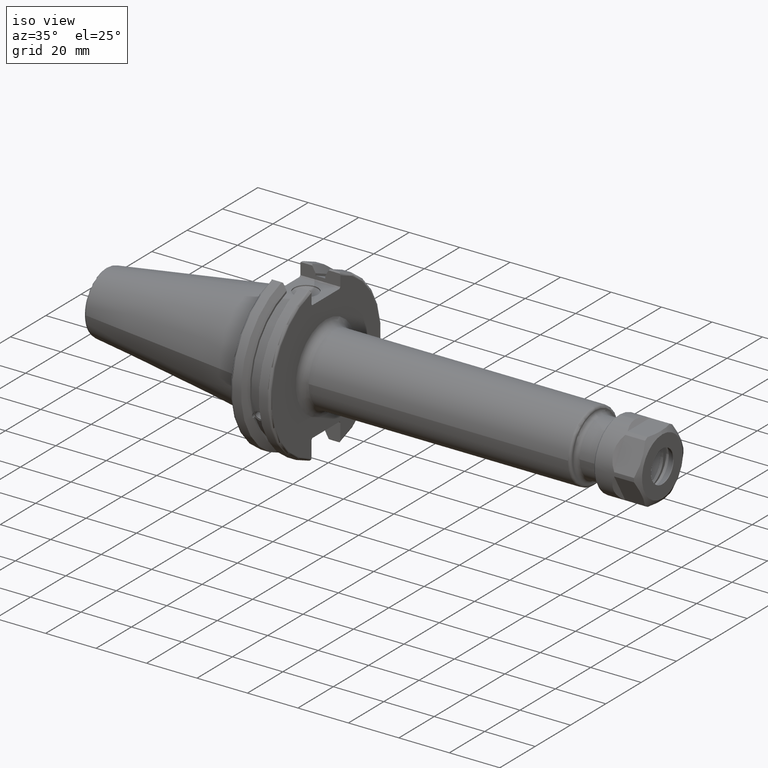
[diagram: clean part render]
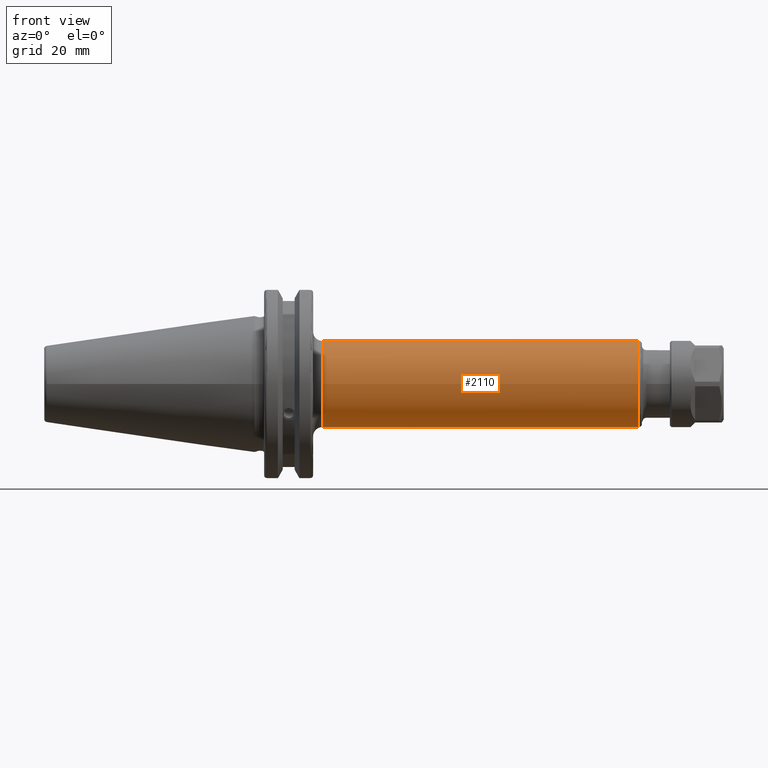
[diagram: tour spotlight — one face highlighted and labeled with its STEP entity id]
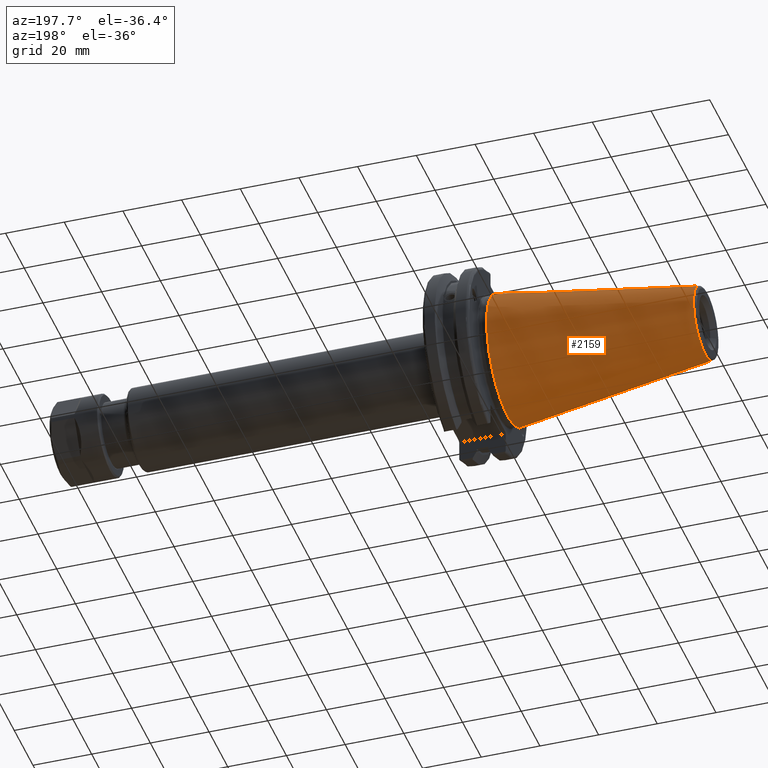
[diagram: tour spotlight — one face highlighted and labeled with its STEP entity id]
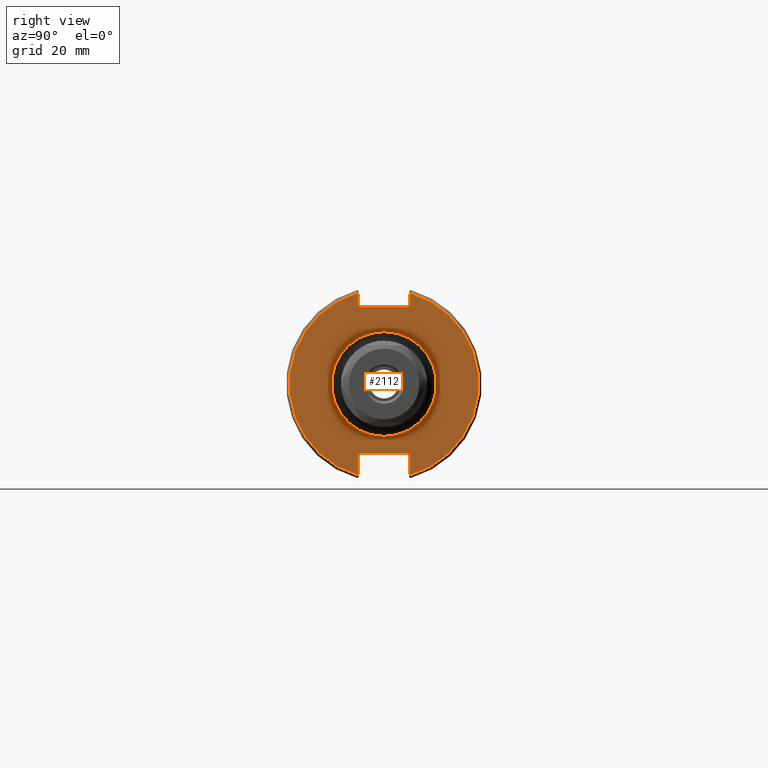
[diagram: tour spotlight — one face highlighted and labeled with its STEP entity id]
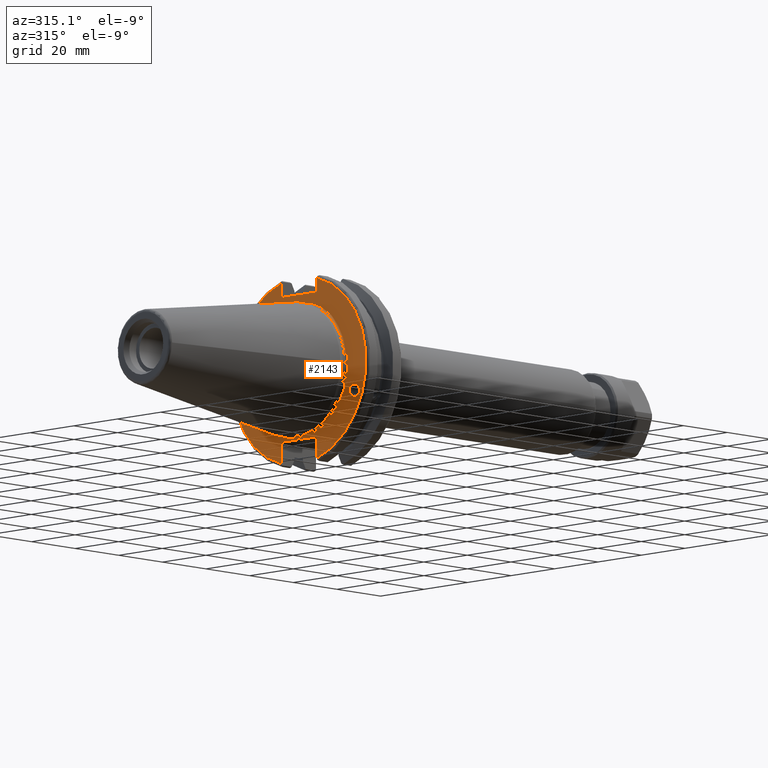
[diagram: tour spotlight — one face highlighted and labeled with its STEP entity id]
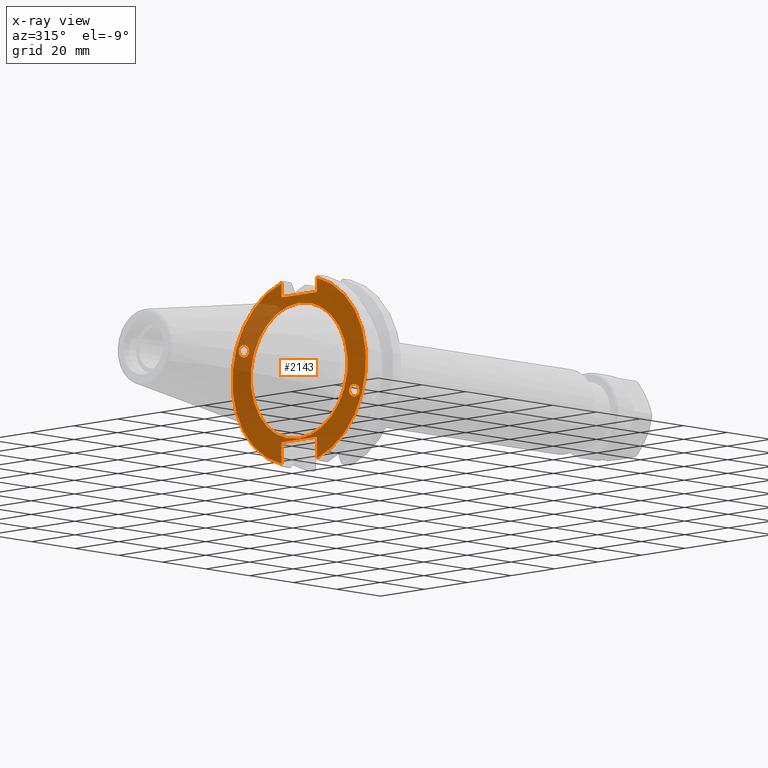
[diagram: x-ray of the same camera — body ghosted, this tour face saturated]
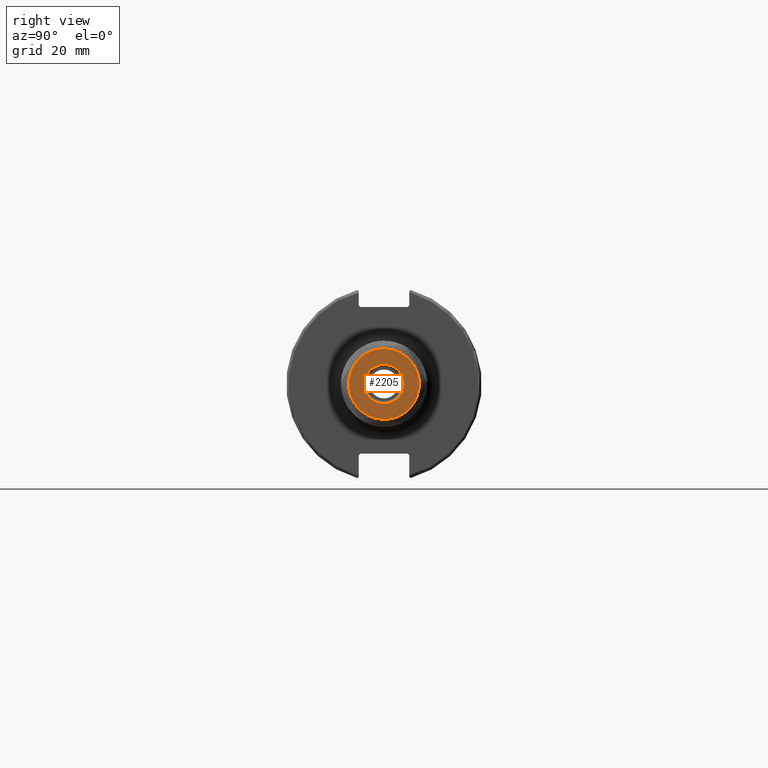
[diagram: tour spotlight — one face highlighted and labeled with its STEP entity id]
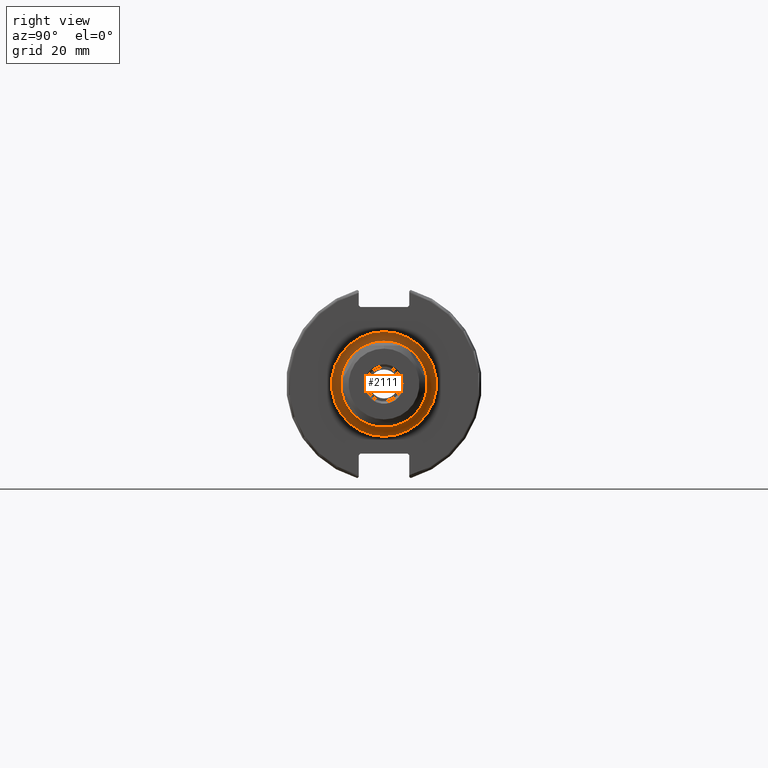
[diagram: tour spotlight — one face highlighted and labeled with its STEP entity id]
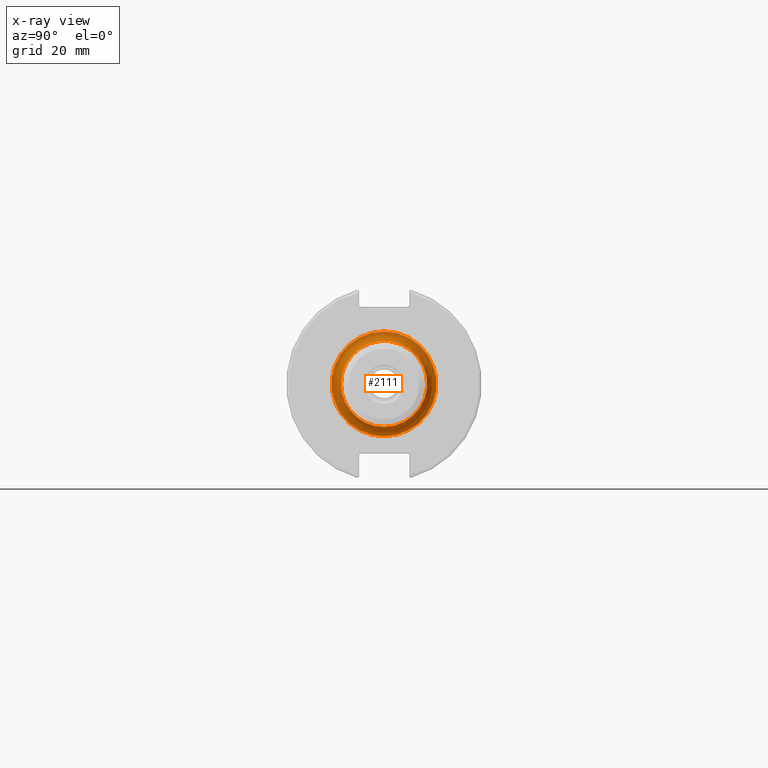
[diagram: x-ray of the same camera — body ghosted, this tour face saturated]
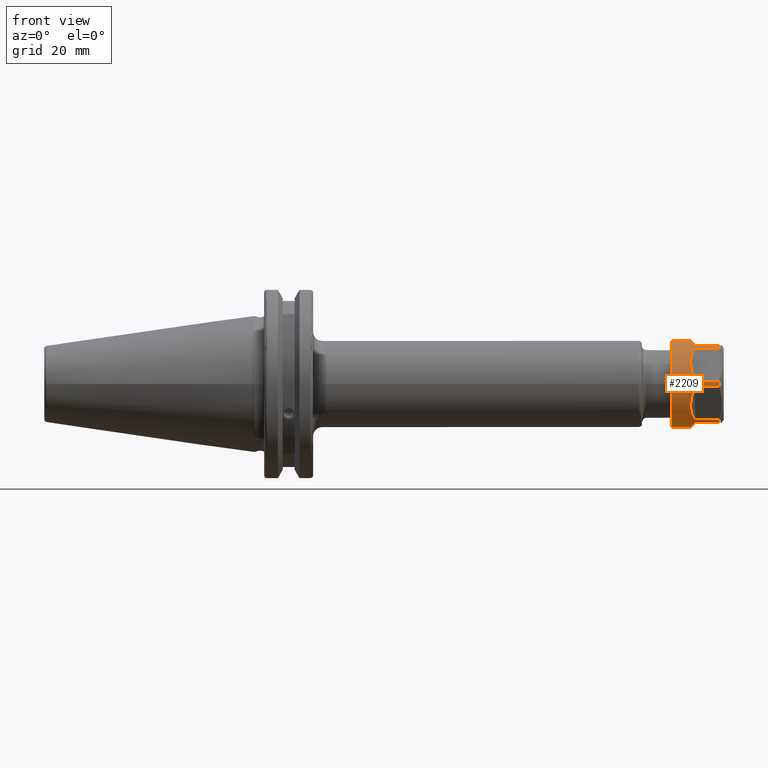
[diagram: tour spotlight — one face highlighted and labeled with its STEP entity id]
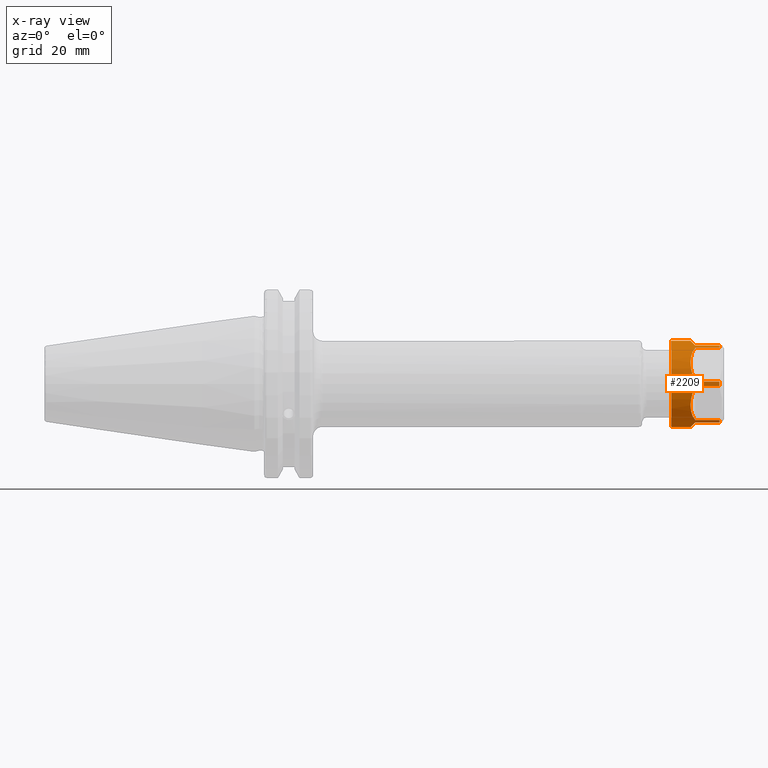
[diagram: x-ray of the same camera — body ghosted, this tour face saturated]
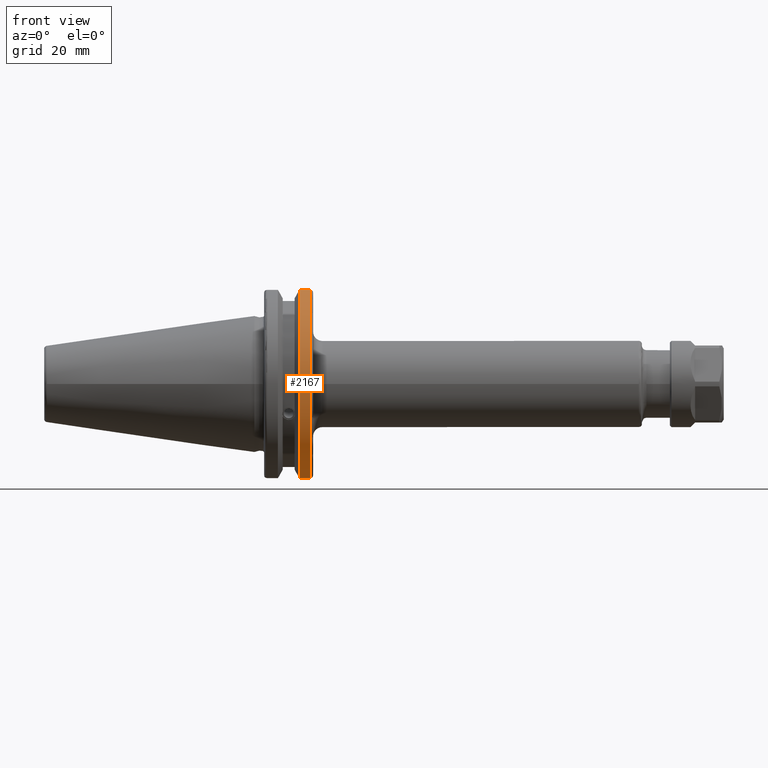
[diagram: tour spotlight — one face highlighted and labeled with its STEP entity id]
A machine part: a face-by-face anatomy tour. The part has 123 B-rep faces; the first image is the clean iso view, then the 8 largest visible faces are spotlighted one at a time (largest first), each with its STEP entity span.

Face 1 — front view, entity #2110. In plain terms, the highlighted cylindrical surface (bore or boss wall) has radius 14 mm, axis along (1, 0, 0).
Definition (entity closure, byte-faithful):
#235=CYLINDRICAL_SURFACE('',#2329,14.);
#280=FACE_OUTER_BOUND('',#407,.T.);
#407=EDGE_LOOP('',(#1495,#1496,#1497,#1498,#1499,#1500));
#543=LINE('',#3352,#675);
#675=VECTOR('',#2634,14.);
#820=CIRCLE('',#2327,14.);
#821=CIRCLE('',#2328,14.);
#822=CIRCLE('',#2330,14.);
#823=CIRCLE('',#2331,14.);
#931=VERTEX_POINT('',#3345);
#932=VERTEX_POINT('',#3347);
#933=VERTEX_POINT('',#3351);
#934=VERTEX_POINT('',#3353);
#1151=EDGE_CURVE('',#931,#932,#820,.T.);
#1152=EDGE_CURVE('',#932,#931,#821,.T.);
#1153=EDGE_CURVE('',#932,#933,#543,.T.);
#1154=EDGE_CURVE('',#934,#933,#822,.T.);
#1155=EDGE_CURVE('',#933,#934,#823,.T.);
#1495=ORIENTED_EDGE('',*,*,#1152,.F.);
#1496=ORIENTED_EDGE('',*,*,#1153,.T.);
#1497=ORIENTED_EDGE('',*,*,#1154,.F.);
#1498=ORIENTED_EDGE('',*,*,#1155,.F.);
#1499=ORIENTED_EDGE('',*,*,#1153,.F.);
#1500=ORIENTED_EDGE('',*,*,#1151,.F.);
#2110=ADVANCED_FACE('',(#280),#235,.T.);
#2327=AXIS2_PLACEMENT_3D('',#3348,#2628,#2629);
#2328=AXIS2_PLACEMENT_3D('',#3349,#2630,#2631);
#2329=AXIS2_PLACEMENT_3D('',#3350,#2632,#2633);
#2330=AXIS2_PLACEMENT_3D('',#3354,#2635,#2636);
#2331=AXIS2_PLACEMENT_3D('',#3355,#2637,#2638);
#2628=DIRECTION('center_axis',(1.,0.,0.));
#2629=DIRECTION('ref_axis',(0.,-1.,1.83697019872103E-16));
#2630=DIRECTION('center_axis',(1.,0.,0.));
#2631=DIRECTION('ref_axis',(0.,-1.,1.83697019872103E-16));
#2632=DIRECTION('center_axis',(1.,0.,0.));
#2633=DIRECTION('ref_axis',(0.,1.,0.));
#2634=DIRECTION('',(-1.,0.,0.));
#2635=DIRECTION('center_axis',(-1.,0.,0.));
#2636=DIRECTION('ref_axis',(0.,-1.,-1.22464679914735E-16));
#2637=DIRECTION('center_axis',(-1.,0.,0.));
#2638=DIRECTION('ref_axis',(0.,-1.,-1.22464679914735E-16));
#3345=CARTESIAN_POINT('',(124.8,-1.71450551880629E-15,14.));
#3347=CARTESIAN_POINT('',(124.8,-14.,-1.71450551880629E-15));
#3348=CARTESIAN_POINT('Origin',(124.8,0.,0.));
#3349=CARTESIAN_POINT('Origin',(124.8,0.,0.));
#3350=CARTESIAN_POINT('Origin',(72.425,0.,0.));
#3351=CARTESIAN_POINT('',(22.05,-14.,-1.71450551880629E-15));
#3352=CARTESIAN_POINT('',(72.425,-14.,-1.71450551880629E-15));
#3353=CARTESIAN_POINT('',(22.05,-1.71450551880629E-15,-14.));
#3354=CARTESIAN_POINT('Origin',(22.05,0.,0.));
#3355=CARTESIAN_POINT('Origin',(22.05,0.,0.));

Face 2 — auxiliary view, entity #2159. In plain terms, the highlighted conical surface has half-angle 8.297 deg.
Definition (entity closure, byte-faithful):
#329=FACE_OUTER_BOUND('',#466,.T.);
#466=EDGE_LOOP('',(#1787,#1788,#1789,#1790,#1791));
#614=LINE('',#3937,#746);
#746=VECTOR('',#2935,17.2484375);
#864=CIRCLE('',#2437,12.3966635780937);
#865=CIRCLE('',#2438,12.3966635780937);
#869=CIRCLE('',#2444,22.225);
#1056=VERTEX_POINT('',#3924);
#1057=VERTEX_POINT('',#3925);
#1060=VERTEX_POINT('',#3935);
#1324=EDGE_CURVE('',#1056,#1057,#864,.T.);
#1325=EDGE_CURVE('',#1057,#1056,#865,.T.);
#1329=EDGE_CURVE('',#1060,#1060,#869,.T.);
#1330=EDGE_CURVE('',#1060,#1057,#614,.T.);
#1787=ORIENTED_EDGE('',*,*,#1329,.F.);
#1788=ORIENTED_EDGE('',*,*,#1330,.T.);
#1789=ORIENTED_EDGE('',*,*,#1324,.F.);
#1790=ORIENTED_EDGE('',*,*,#1325,.F.);
#1791=ORIENTED_EDGE('',*,*,#1330,.F.);
#2088=CONICAL_SURFACE('',#2443,17.2484375,0.144812498238939);
#2159=ADVANCED_FACE('',(#329),#2088,.T.);
#2437=AXIS2_PLACEMENT_3D('',#3926,#2919,#2920);
#2438=AXIS2_PLACEMENT_3D('',#3927,#2921,#2922);
#2443=AXIS2_PLACEMENT_3D('',#3934,#2931,#2932);
#2444=AXIS2_PLACEMENT_3D('',#3936,#2933,#2934);
#2919=DIRECTION('center_axis',(-1.,0.,0.));
#2920=DIRECTION('ref_axis',(0.,-1.,3.06161699786838E-17));
#2921=DIRECTION('center_axis',(-1.,0.,0.));
#2922=DIRECTION('ref_axis',(0.,-1.,3.06161699786838E-17));
#2931=DIRECTION('center_axis',(1.,0.,0.));
#2932=DIRECTION('ref_axis',(0.,1.,0.));
#2933=DIRECTION('center_axis',(1.,0.,0.));
#2934=DIRECTION('ref_axis',(0.,0.,-1.));
#2935=DIRECTION('',(-0.989532981063282,0.144306893071729,1.76724974695192E-17));
#3924=CARTESIAN_POINT('',(-67.3943068930717,-1.5181534371019E-15,12.3966635780937));
#3925=CARTESIAN_POINT('',(-67.3943068930718,-12.3966635780937,-1.5181534371019E-15));
#3926=CARTESIAN_POINT('Origin',(-67.3943068930717,0.,-1.89769179637738E-15));
#3927=CARTESIAN_POINT('Origin',(-67.3943068930717,0.,-1.89769179637738E-15));
#3934=CARTESIAN_POINT('Origin',(-34.125,0.,0.));
#3935=CARTESIAN_POINT('',(0.,-22.225,-2.72177751110499E-15));
#3936=CARTESIAN_POINT('Origin',(0.,0.,0.));
#3937=CARTESIAN_POINT('',(-34.125,-17.2484375,-2.11232437746682E-15));

Face 3 — right view, entity #2112. In plain terms, the highlighted planar face has unit normal (1, 0, 0).
Definition (entity closure, byte-faithful):
#158=FACE_BOUND('',#410,.T.);
#178=PLANE('',#2335);
#282=FACE_OUTER_BOUND('',#409,.T.);
#409=EDGE_LOOP('',(#1506,#1507,#1508,#1509,#1510,#1511,#1512,#1513,#1514,
#1515,#1516,#1517));
#410=EDGE_LOOP('',(#1518));
#544=LINE('',#3365,#676);
#545=LINE('',#3367,#677);
#546=LINE('',#3369,#678);
#547=LINE('',#3371,#679);
#548=LINE('',#3373,#680);
#549=LINE('',#3377,#681);
#550=LINE('',#3379,#682);
#551=LINE('',#3381,#683);
#552=LINE('',#3383,#684);
#553=LINE('',#3384,#685);
#676=VECTOR('',#2649,10.);
#677=VECTOR('',#2650,10.);
#678=VECTOR('',#2651,10.);
#679=VECTOR('',#2652,10.);
#680=VECTOR('',#2653,10.);
#681=VECTOR('',#2656,10.);
#682=VECTOR('',#2657,10.);
#683=VECTOR('',#2658,10.);
#684=VECTOR('',#2659,10.);
#685=VECTOR('',#2660,10.);
#825=CIRCLE('',#2334,17.);
#826=CIRCLE('',#2336,30.75);
#827=CIRCLE('',#2337,30.75);
#935=VERTEX_POINT('',#3357);
#936=VERTEX_POINT('',#3361);
#937=VERTEX_POINT('',#3362);
#938=VERTEX_POINT('',#3364);
#939=VERTEX_POINT('',#3366);
#940=VERTEX_POINT('',#3368);
#941=VERTEX_POINT('',#3370);
#942=VERTEX_POINT('',#3372);
#943=VERTEX_POINT('',#3374);
#944=VERTEX_POINT('',#3376);
#945=VERTEX_POINT('',#3378);
#946=VERTEX_POINT('',#3380);
#947=VERTEX_POINT('',#3382);
#1157=EDGE_CURVE('',#935,#935,#825,.T.);
#1158=EDGE_CURVE('',#936,#937,#826,.T.);
#1159=EDGE_CURVE('',#936,#938,#544,.T.);
#1160=EDGE_CURVE('',#939,#938,#545,.T.);
#1161=EDGE_CURVE('',#939,#940,#546,.T.);
#1162=EDGE_CURVE('',#941,#940,#547,.T.);
#1163=EDGE_CURVE('',#941,#942,#548,.T.);
#1164=EDGE_CURVE('',#943,#942,#827,.T.);
#1165=EDGE_CURVE('',#943,#944,#549,.T.);
#1166=EDGE_CURVE('',#945,#944,#550,.T.);
#1167=EDGE_CURVE('',#945,#946,#551,.T.);
#1168=EDGE_CURVE('',#947,#946,#552,.T.);
#1169=EDGE_CURVE('',#947,#937,#553,.T.);
#1506=ORIENTED_EDGE('',*,*,#1158,.F.);
#1507=ORIENTED_EDGE('',*,*,#1159,.T.);
#1508=ORIENTED_EDGE('',*,*,#1160,.F.);
#1509=ORIENTED_EDGE('',*,*,#1161,.T.);
#1510=ORIENTED_EDGE('',*,*,#1162,.F.);
#1511=ORIENTED_EDGE('',*,*,#1163,.T.);
#1512=ORIENTED_EDGE('',*,*,#1164,.F.);
#1513=ORIENTED_EDGE('',*,*,#1165,.T.);
#1514=ORIENTED_EDGE('',*,*,#1166,.F.);
#1515=ORIENTED_EDGE('',*,*,#1167,.T.);
#1516=ORIENTED_EDGE('',*,*,#1168,.F.);
#1517=ORIENTED_EDGE('',*,*,#1169,.T.);
#1518=ORIENTED_EDGE('',*,*,#1157,.F.);
#2112=ADVANCED_FACE('',(#282,#158),#178,.T.);
#2334=AXIS2_PLACEMENT_3D('',#3359,#2643,#2644);
#2335=AXIS2_PLACEMENT_3D('',#3360,#2645,#2646);
#2336=AXIS2_PLACEMENT_3D('',#3363,#2647,#2648);
#2337=AXIS2_PLACEMENT_3D('',#3375,#2654,#2655);
#2643=DIRECTION('center_axis',(1.,0.,0.));
#2644=DIRECTION('ref_axis',(0.,-1.,-1.22464679914735E-16));
#2645=DIRECTION('center_axis',(1.,0.,0.));
#2646=DIRECTION('ref_axis',(0.,0.,-1.));
#2647=DIRECTION('center_axis',(-1.,0.,0.));
#2648=DIRECTION('ref_axis',(0.,1.,-6.12323399573677E-17));
#2649=DIRECTION('',(0.,0.,-1.));
#2650=DIRECTION('',(0.,0.707106781186549,0.707106781186546));
#2651=DIRECTION('',(0.,-1.,0.));
#2652=DIRECTION('',(0.,0.70710678118655,-0.707106781186545));
#2653=DIRECTION('',(0.,0.,1.));
#2654=DIRECTION('center_axis',(-1.,0.,0.));
#2655=DIRECTION('ref_axis',(0.,-1.,1.60812264967664E-16));
#2656=DIRECTION('',(0.,0.,1.));
#2657=DIRECTION('',(0.,-0.707106781186549,-0.707106781186546));
#2658=DIRECTION('',(0.,1.,0.));
#2659=DIRECTION('',(0.,-0.707106781186549,0.707106781186546));
#2660=DIRECTION('',(0.,0.,-1.));
#3357=CARTESIAN_POINT('',(19.05,-2.0818995585505E-15,-17.));
#3359=CARTESIAN_POINT('Origin',(19.05,0.,0.));
#3360=CARTESIAN_POINT('Origin',(19.05,0.,0.));
#3361=CARTESIAN_POINT('',(19.05,8.19,29.6392712461019));
#3362=CARTESIAN_POINT('',(19.05,8.19,-29.6392712461019));
#3363=CARTESIAN_POINT('Origin',(19.05,0.,0.));
#3364=CARTESIAN_POINT('',(19.05,8.19,25.5));
#3365=CARTESIAN_POINT('',(19.05,8.19,12.5));
#3366=CARTESIAN_POINT('',(19.05,7.69,25.));
#3367=CARTESIAN_POINT('',(19.05,-0.35750000000001,16.9525));
#3368=CARTESIAN_POINT('',(19.05,-7.69,25.));
#3369=CARTESIAN_POINT('',(19.05,0.,25.));
#3370=CARTESIAN_POINT('',(19.05,-8.19,25.5));
#3371=CARTESIAN_POINT('',(19.05,0.357500000000014,16.9525));
#3372=CARTESIAN_POINT('',(19.05,-8.19,29.6392712461019));
#3373=CARTESIAN_POINT('',(19.05,-8.19,12.5));
#3374=CARTESIAN_POINT('',(19.05,-8.19,-29.6392712461019));
#3375=CARTESIAN_POINT('Origin',(19.05,0.,0.));
#3376=CARTESIAN_POINT('',(19.05,-8.19,-23.1));
#3377=CARTESIAN_POINT('',(19.05,-8.19,-11.3));
#3378=CARTESIAN_POINT('',(19.05,-7.69,-22.6));
#3379=CARTESIAN_POINT('',(19.05,-0.242499999999991,-15.1525));
#3380=CARTESIAN_POINT('',(19.05,7.69,-22.6));
#3381=CARTESIAN_POINT('',(19.05,-2.77555756156289E-16,-22.6));
#3382=CARTESIAN_POINT('',(19.05,8.19,-23.1));
#3383=CARTESIAN_POINT('',(19.05,0.242499999999989,-15.1525));
#3384=CARTESIAN_POINT('',(19.05,8.19,-11.3));

Face 4 — auxiliary view, entity #2143. An x-ray twin of the same camera follows (body ghosted, this face saturated) — the face is partly hidden behind the body. In plain terms, the highlighted planar face has unit normal (-1, 0, 0).
Definition (entity closure, byte-faithful):
#96=ELLIPSE('',#2365,2.44154917752292,2.00000000000001);
#105=ELLIPSE('',#2408,2.44154917752292,2.00000000000001);
#164=FACE_BOUND('',#447,.T.);
#165=FACE_BOUND('',#448,.T.);
#166=FACE_BOUND('',#449,.T.);
#188=PLANE('',#2414);
#313=FACE_OUTER_BOUND('',#446,.T.);
#446=EDGE_LOOP('',(#1680,#1681,#1682,#1683,#1684,#1685,#1686,#1687,#1688,
#1689,#1690,#1691));
#447=EDGE_LOOP('',(#1692));
#448=EDGE_LOOP('',(#1693));
#449=EDGE_LOOP('',(#1694));
#584=LINE('',#3705,#716);
#585=LINE('',#3707,#717);
#586=LINE('',#3709,#718);
#587=LINE('',#3711,#719);
#588=LINE('',#3713,#720);
#589=LINE('',#3717,#721);
#590=LINE('',#3719,#722);
#591=LINE('',#3721,#723);
#592=LINE('',#3723,#724);
#593=LINE('',#3724,#725);
#716=VECTOR('',#2847,10.);
#717=VECTOR('',#2848,10.);
#718=VECTOR('',#2849,10.);
#719=VECTOR('',#2850,10.);
#720=VECTOR('',#2851,10.);
#721=VECTOR('',#2854,10.);
#722=VECTOR('',#2855,10.);
#723=VECTOR('',#2856,10.);
#724=VECTOR('',#2857,10.);
#725=VECTOR('',#2858,10.);
#854=CIRCLE('',#2412,22.3);
#856=CIRCLE('',#2415,30.75);
#857=CIRCLE('',#2416,30.75);
#971=VERTEX_POINT('',#3506);
#1011=VERTEX_POINT('',#3689);
#1014=VERTEX_POINT('',#3696);
#1015=VERTEX_POINT('',#3701);
#1016=VERTEX_POINT('',#3702);
#1017=VERTEX_POINT('',#3704);
#1018=VERTEX_POINT('',#3706);
#1019=VERTEX_POINT('',#3708);
#1020=VERTEX_POINT('',#3710);
#1021=VERTEX_POINT('',#3712);
#1022=VERTEX_POINT('',#3714);
#1023=VERTEX_POINT('',#3716);
#1024=VERTEX_POINT('',#3718);
#1025=VERTEX_POINT('',#3720);
#1026=VERTEX_POINT('',#3722);
#1203=EDGE_CURVE('',#971,#971,#96,.T.);
#1259=EDGE_CURVE('',#1011,#1011,#105,.T.);
#1262=EDGE_CURVE('',#1014,#1014,#854,.T.);
#1264=EDGE_CURVE('',#1015,#1016,#856,.T.);
#1265=EDGE_CURVE('',#1015,#1017,#584,.T.);
#1266=EDGE_CURVE('',#1018,#1017,#585,.T.);
#1267=EDGE_CURVE('',#1018,#1019,#586,.T.);
#1268=EDGE_CURVE('',#1020,#1019,#587,.T.);
#1269=EDGE_CURVE('',#1020,#1021,#588,.T.);
#1270=EDGE_CURVE('',#1022,#1021,#857,.T.);
#1271=EDGE_CURVE('',#1022,#1023,#589,.T.);
#1272=EDGE_CURVE('',#1024,#1023,#590,.T.);
#1273=EDGE_CURVE('',#1024,#1025,#591,.T.);
#1274=EDGE_CURVE('',#1026,#1025,#592,.T.);
#1275=EDGE_CURVE('',#1026,#1016,#593,.T.);
#1680=ORIENTED_EDGE('',*,*,#1264,.F.);
#1681=ORIENTED_EDGE('',*,*,#1265,.T.);
#1682=ORIENTED_EDGE('',*,*,#1266,.F.);
#1683=ORIENTED_EDGE('',*,*,#1267,.T.);
#1684=ORIENTED_EDGE('',*,*,#1268,.F.);
#1685=ORIENTED_EDGE('',*,*,#1269,.T.);
#1686=ORIENTED_EDGE('',*,*,#1270,.F.);
#1687=ORIENTED_EDGE('',*,*,#1271,.T.);
#1688=ORIENTED_EDGE('',*,*,#1272,.F.);
#1689=ORIENTED_EDGE('',*,*,#1273,.T.);
#1690=ORIENTED_EDGE('',*,*,#1274,.F.);
#1691=ORIENTED_EDGE('',*,*,#1275,.T.);
#1692=ORIENTED_EDGE('',*,*,#1203,.T.);
#1693=ORIENTED_EDGE('',*,*,#1259,.T.);
#1694=ORIENTED_EDGE('',*,*,#1262,.F.);
#2143=ADVANCED_FACE('',(#313,#164,#165,#166),#188,.T.);
#2365=AXIS2_PLACEMENT_3D('',#3508,#2728,#2729);
#2408=AXIS2_PLACEMENT_3D('',#3691,#2831,#2832);
#2412=AXIS2_PLACEMENT_3D('',#3698,#2839,#2840);
#2414=AXIS2_PLACEMENT_3D('',#3700,#2843,#2844);
#2415=AXIS2_PLACEMENT_3D('',#3703,#2845,#2846);
#2416=AXIS2_PLACEMENT_3D('',#3715,#2852,#2853);
#2728=DIRECTION('center_axis',(1.,0.,0.));
#2729=DIRECTION('ref_axis',(5.68400912649E-17,-0.939692620785909,-0.342020143325667));
#2831=DIRECTION('center_axis',(1.,0.,0.));
#2832=DIRECTION('ref_axis',(5.68400912649E-17,0.939692620785909,0.342020143325667));
#2839=DIRECTION('center_axis',(-1.,0.,0.));
#2840=DIRECTION('ref_axis',(0.,-1.,1.83697019872103E-16));
#2843=DIRECTION('center_axis',(-1.,0.,0.));
#2844=DIRECTION('ref_axis',(0.,0.,1.));
#2845=DIRECTION('center_axis',(1.,0.,0.));
#2846=DIRECTION('ref_axis',(0.,-1.,1.60812264967664E-16));
#2847=DIRECTION('',(0.,0.,-1.));
#2848=DIRECTION('',(0.,-0.70710678118655,0.707106781186545));
#2849=DIRECTION('',(0.,1.,0.));
#2850=DIRECTION('',(0.,-0.707106781186549,-0.707106781186546));
#2851=DIRECTION('',(0.,0.,1.));
#2852=DIRECTION('center_axis',(1.,0.,0.));
#2853=DIRECTION('ref_axis',(0.,1.,1.60812264967664E-16));
#2854=DIRECTION('',(0.,0.,1.));
#2855=DIRECTION('',(0.,0.707106781186549,-0.707106781186546));
#2856=DIRECTION('',(0.,-1.,0.));
#2857=DIRECTION('',(0.,0.707106781186549,0.707106781186546));
#2858=DIRECTION('',(0.,0.,-1.));
#3506=CARTESIAN_POINT('',(3.175,-23.0773950158153,-8.39948487016));
#3508=CARTESIAN_POINT('Origin',(3.175,-25.3717007612195,-9.23454386979305));
#3689=CARTESIAN_POINT('',(3.175,23.0773950158153,8.39948487016));
#3691=CARTESIAN_POINT('Origin',(3.175,25.3717007612195,9.23454386979306));
#3696=CARTESIAN_POINT('',(3.175,-2.7309623620986E-15,22.3));
#3698=CARTESIAN_POINT('Origin',(3.175,0.,0.));
#3700=CARTESIAN_POINT('Origin',(3.175,31.75,0.));
#3701=CARTESIAN_POINT('',(3.175,-8.18999999999999,29.6392712461019));
#3702=CARTESIAN_POINT('',(3.175,-8.19,-29.6392712461019));
#3703=CARTESIAN_POINT('Origin',(3.175,0.,0.));
#3704=CARTESIAN_POINT('',(3.175,-8.18999999999999,25.5));
#3705=CARTESIAN_POINT('',(3.175,-8.18999999999999,12.5));
#3706=CARTESIAN_POINT('',(3.175,-7.68999999999999,25.));
#3707=CARTESIAN_POINT('',(3.175,8.29500000000007,9.01500000000004));
#3708=CARTESIAN_POINT('',(3.175,7.69,25.));
#3709=CARTESIAN_POINT('',(3.175,15.875,25.));
#3710=CARTESIAN_POINT('',(3.175,8.19,25.5));
#3711=CARTESIAN_POINT('',(3.175,7.58000000000002,24.89));
#3712=CARTESIAN_POINT('',(3.175,8.19,29.6392712461019));
#3713=CARTESIAN_POINT('',(3.175,8.19,12.5));
#3714=CARTESIAN_POINT('',(3.175,8.18999999999999,-29.6392712461019));
#3715=CARTESIAN_POINT('Origin',(3.175,0.,0.));
#3716=CARTESIAN_POINT('',(3.175,8.18999999999999,-23.1));
#3717=CARTESIAN_POINT('',(3.175,8.18999999999999,-11.3));
#3718=CARTESIAN_POINT('',(3.175,7.69,-22.6));
#3719=CARTESIAN_POINT('',(3.175,8.18000000000002,-23.09));
#3720=CARTESIAN_POINT('',(3.175,-7.69,-22.6));
#3721=CARTESIAN_POINT('',(3.175,15.875,-22.6));
#3722=CARTESIAN_POINT('',(3.175,-8.19,-23.1));
#3723=CARTESIAN_POINT('',(3.175,7.69500000000004,-7.21500000000002));
#3724=CARTESIAN_POINT('',(3.175,-8.19,-11.3));

Face 5 — right view, entity #2205. In plain terms, the highlighted planar face has unit normal (1, 0, 0).
Definition (entity closure, byte-faithful):
#175=FACE_BOUND('',#520,.T.);
#219=PLANE('',#2522);
#375=FACE_OUTER_BOUND('',#519,.T.);
#519=EDGE_LOOP('',(#1988));
#520=EDGE_LOOP('',(#1989));
#900=CIRCLE('',#2521,6.4);
#901=CIRCLE('',#2523,11.5);
#1091=VERTEX_POINT('',#4081);
#1092=VERTEX_POINT('',#4085);
#1395=EDGE_CURVE('',#1091,#1091,#900,.T.);
#1396=EDGE_CURVE('',#1092,#1092,#901,.T.);
#1988=ORIENTED_EDGE('',*,*,#1396,.T.);
#1989=ORIENTED_EDGE('',*,*,#1395,.F.);
#2205=ADVANCED_FACE('',(#375,#175),#219,.T.);
#2521=AXIS2_PLACEMENT_3D('',#4083,#3120,#3121);
#2522=AXIS2_PLACEMENT_3D('',#4084,#3122,#3123);
#2523=AXIS2_PLACEMENT_3D('',#4086,#3124,#3125);
#3120=DIRECTION('center_axis',(1.,0.,0.));
#3121=DIRECTION('ref_axis',(0.,1.,0.));
#3122=DIRECTION('center_axis',(1.,0.,0.));
#3123=DIRECTION('ref_axis',(0.,0.,-1.));
#3124=DIRECTION('center_axis',(1.,0.,0.));
#3125=DIRECTION('ref_axis',(0.,0.,1.));
#4081=CARTESIAN_POINT('',(8.75,6.4,0.));
#4083=CARTESIAN_POINT('Origin',(8.75,0.,0.));
#4084=CARTESIAN_POINT('Origin',(8.75,0.,0.));
#4085=CARTESIAN_POINT('',(8.75,0.,11.5));
#4086=CARTESIAN_POINT('Origin',(8.75,0.,0.));

Face 6 — right view, entity #2111. An x-ray twin of the same camera follows (body ghosted, this face saturated) — the face is partly hidden behind the body. In plain terms, the highlighted toroidal blend (fillet) surface has major radius 17 mm and minor (blend) radius 3 mm.
Definition (entity closure, byte-faithful):
#116=TOROIDAL_SURFACE('',#2332,17.,3.);
#281=FACE_OUTER_BOUND('',#408,.T.);
#408=EDGE_LOOP('',(#1501,#1502,#1503,#1504,#1505));
#822=CIRCLE('',#2330,14.);
#823=CIRCLE('',#2331,14.);
#824=CIRCLE('',#2333,3.);
#825=CIRCLE('',#2334,17.);
#933=VERTEX_POINT('',#3351);
#934=VERTEX_POINT('',#3353);
#935=VERTEX_POINT('',#3357);
#1154=EDGE_CURVE('',#934,#933,#822,.T.);
#1155=EDGE_CURVE('',#933,#934,#823,.T.);
#1156=EDGE_CURVE('',#934,#935,#824,.T.);
#1157=EDGE_CURVE('',#935,#935,#825,.T.);
#1501=ORIENTED_EDGE('',*,*,#1155,.T.);
#1502=ORIENTED_EDGE('',*,*,#1156,.T.);
#1503=ORIENTED_EDGE('',*,*,#1157,.T.);
#1504=ORIENTED_EDGE('',*,*,#1156,.F.);
#1505=ORIENTED_EDGE('',*,*,#1154,.T.);
#2111=ADVANCED_FACE('',(#281),#116,.F.);
#2330=AXIS2_PLACEMENT_3D('',#3354,#2635,#2636);
#2331=AXIS2_PLACEMENT_3D('',#3355,#2637,#2638);
#2332=AXIS2_PLACEMENT_3D('',#3356,#2639,#2640);
#2333=AXIS2_PLACEMENT_3D('',#3358,#2641,#2642);
#2334=AXIS2_PLACEMENT_3D('',#3359,#2643,#2644);
#2635=DIRECTION('center_axis',(-1.,0.,0.));
#2636=DIRECTION('ref_axis',(0.,-1.,-1.22464679914735E-16));
#2637=DIRECTION('center_axis',(-1.,0.,0.));
#2638=DIRECTION('ref_axis',(0.,-1.,-1.22464679914735E-16));
#2639=DIRECTION('center_axis',(-1.,0.,0.));
#2640=DIRECTION('ref_axis',(0.,0.,1.));
#2641=DIRECTION('center_axis',(0.,-1.,1.22464679914735E-16));
#2642=DIRECTION('ref_axis',(0.,-1.22464679914735E-16,-1.));
#2643=DIRECTION('center_axis',(1.,0.,0.));
#2644=DIRECTION('ref_axis',(0.,-1.,-1.22464679914735E-16));
#3351=CARTESIAN_POINT('',(22.05,-14.,-1.71450551880629E-15));
#3353=CARTESIAN_POINT('',(22.05,-1.71450551880629E-15,-14.));
#3354=CARTESIAN_POINT('Origin',(22.05,0.,0.));
#3355=CARTESIAN_POINT('Origin',(22.05,0.,0.));
#3356=CARTESIAN_POINT('Origin',(22.05,0.,0.));
#3357=CARTESIAN_POINT('',(19.05,-2.0818995585505E-15,-17.));
#3358=CARTESIAN_POINT('Origin',(22.05,-2.0818995585505E-15,-17.));
#3359=CARTESIAN_POINT('Origin',(19.05,0.,0.));

Face 7 — front view, entity #2209. An x-ray twin of the same camera follows (body ghosted, this face saturated) — the face is partly hidden behind the body. In plain terms, the highlighted cylindrical surface (bore or boss wall) has radius 14 mm, axis along (1, 0, 0).
Definition (entity closure, byte-faithful):
#106=ELLIPSE('',#2533,19.7989898732233,14.);
#107=ELLIPSE('',#2535,19.7989898732243,14.);
#108=ELLIPSE('',#2536,19.7989898732243,14.);
#109=ELLIPSE('',#2537,19.7989898732233,14.);
#110=ELLIPSE('',#2539,19.7989898732233,14.);
#111=ELLIPSE('',#2540,19.7989898732243,14.);
#112=ELLIPSE('',#2541,19.7989898732243,14.);
#267=CYLINDRICAL_SURFACE('',#2534,14.);
#379=FACE_OUTER_BOUND('',#524,.T.);
#524=EDGE_LOOP('',(#2012,#2013,#2014,#2015,#2016,#2017,#2018,#2019,#2020,
#2021,#2022,#2023,#2024,#2025,#2026,#2027,#2028,#2029,#2030,#2031,#2032,
#2033,#2034,#2035,#2036,#2037,#2038,#2039));
#649=LINE('',#4133,#781);
#650=LINE('',#4134,#782);
#651=LINE('',#4139,#783);
#652=LINE('',#4142,#784);
#653=LINE('',#4144,#785);
#654=LINE('',#4147,#786);
#655=LINE('',#4149,#787);
#656=LINE('',#4153,#788);
#657=LINE('',#4157,#789);
#658=LINE('',#4159,#790);
#659=LINE('',#4162,#791);
#660=LINE('',#4164,#792);
#661=LINE('',#4167,#793);
#781=VECTOR('',#3144,7.856624327026);
#782=VECTOR('',#3145,7.856624327026);
#783=VECTOR('',#3152,7.856624327026);
#784=VECTOR('',#3155,7.856624327026);
#785=VECTOR('',#3156,7.856624327026);
#786=VECTOR('',#3159,7.856624327026);
#787=VECTOR('',#3160,7.856624327026);
#788=VECTOR('',#3163,14.);
#789=VECTOR('',#3168,7.856624327026);
#790=VECTOR('',#3169,7.856624327026);
#791=VECTOR('',#3172,7.856624327026);
#792=VECTOR('',#3173,7.856624327026);
#793=VECTOR('',#3176,7.856624327026);
#902=CIRCLE('',#2525,14.);
#903=CIRCLE('',#2526,14.);
#904=CIRCLE('',#2527,14.);
#905=CIRCLE('',#2528,14.);
#906=CIRCLE('',#2529,14.);
#907=CIRCLE('',#2530,14.);
#908=CIRCLE('',#2538,14.);
#1093=VERTEX_POINT('',#4088);
#1095=VERTEX_POINT('',#4093);
#1096=VERTEX_POINT('',#4095);
#1097=VERTEX_POINT('',#4099);
#1098=VERTEX_POINT('',#4101);
#1099=VERTEX_POINT('',#4105);
#1100=VERTEX_POINT('',#4107);
#1101=VERTEX_POINT('',#4111);
#1102=VERTEX_POINT('',#4113);
#1103=VERTEX_POINT('',#4117);
#1104=VERTEX_POINT('',#4119);
#1105=VERTEX_POINT('',#4123);
#1106=VERTEX_POINT('',#4130);
#1107=VERTEX_POINT('',#4131);
#1108=VERTEX_POINT('',#4138);
#1109=VERTEX_POINT('',#4140);
#1110=VERTEX_POINT('',#4143);
#1111=VERTEX_POINT('',#4145);
#1112=VERTEX_POINT('',#4148);
#1113=VERTEX_POINT('',#4150);
#1114=VERTEX_POINT('',#4152);
#1115=VERTEX_POINT('',#4155);
#1116=VERTEX_POINT('',#4158);
#1117=VERTEX_POINT('',#4160);
#1118=VERTEX_POINT('',#4163);
#1119=VERTEX_POINT('',#4165);
#1398=EDGE_CURVE('',#1093,#1095,#902,.T.);
#1400=EDGE_CURVE('',#1096,#1097,#903,.T.);
#1402=EDGE_CURVE('',#1098,#1099,#904,.T.);
#1404=EDGE_CURVE('',#1100,#1101,#905,.T.);
#1406=EDGE_CURVE('',#1102,#1103,#906,.T.);
#1408=EDGE_CURVE('',#1104,#1105,#907,.T.);
#1412=EDGE_CURVE('',#1106,#1100,#649,.T.);
#1413=EDGE_CURVE('',#1107,#1099,#650,.T.);
#1414=EDGE_CURVE('',#1107,#1106,#106,.T.);
#1415=EDGE_CURVE('',#1108,#1098,#651,.T.);
#1416=EDGE_CURVE('',#1109,#1108,#107,.T.);
#1417=EDGE_CURVE('',#1109,#1097,#652,.T.);
#1418=EDGE_CURVE('',#1110,#1096,#653,.T.);
#1419=EDGE_CURVE('',#1111,#1110,#108,.T.);
#1420=EDGE_CURVE('',#1111,#1095,#654,.T.);
#1421=EDGE_CURVE('',#1112,#1093,#655,.T.);
#1422=EDGE_CURVE('',#1113,#1112,#109,.T.);
#1423=EDGE_CURVE('',#1113,#1114,#656,.T.);
#1424=EDGE_CURVE('',#1114,#1114,#908,.T.);
#1425=EDGE_CURVE('',#1115,#1113,#110,.T.);
#1426=EDGE_CURVE('',#1115,#1105,#657,.T.);
#1427=EDGE_CURVE('',#1116,#1104,#658,.T.);
#1428=EDGE_CURVE('',#1117,#1116,#111,.T.);
#1429=EDGE_CURVE('',#1117,#1103,#659,.T.);
#1430=EDGE_CURVE('',#1118,#1102,#660,.T.);
#1431=EDGE_CURVE('',#1119,#1118,#112,.T.);
#1432=EDGE_CURVE('',#1119,#1101,#661,.T.);
#2012=ORIENTED_EDGE('',*,*,#1414,.F.);
#2013=ORIENTED_EDGE('',*,*,#1413,.T.);
#2014=ORIENTED_EDGE('',*,*,#1402,.F.);
#2015=ORIENTED_EDGE('',*,*,#1415,.F.);
#2016=ORIENTED_EDGE('',*,*,#1416,.F.);
#2017=ORIENTED_EDGE('',*,*,#1417,.T.);
#2018=ORIENTED_EDGE('',*,*,#1400,.F.);
#2019=ORIENTED_EDGE('',*,*,#1418,.F.);
#2020=ORIENTED_EDGE('',*,*,#1419,.F.);
#2021=ORIENTED_EDGE('',*,*,#1420,.T.);
#2022=ORIENTED_EDGE('',*,*,#1398,.F.);
#2023=ORIENTED_EDGE('',*,*,#1421,.F.);
#2024=ORIENTED_EDGE('',*,*,#1422,.F.);
#2025=ORIENTED_EDGE('',*,*,#1423,.T.);
#2026=ORIENTED_EDGE('',*,*,#1424,.F.);
#2027=ORIENTED_EDGE('',*,*,#1423,.F.);
#2028=ORIENTED_EDGE('',*,*,#1425,.F.);
#2029=ORIENTED_EDGE('',*,*,#1426,.T.);
#2030=ORIENTED_EDGE('',*,*,#1408,.F.);
#2031=ORIENTED_EDGE('',*,*,#1427,.F.);
#2032=ORIENTED_EDGE('',*,*,#1428,.F.);
#2033=ORIENTED_EDGE('',*,*,#1429,.T.);
#2034=ORIENTED_EDGE('',*,*,#1406,.F.);
#2035=ORIENTED_EDGE('',*,*,#1430,.F.);
#2036=ORIENTED_EDGE('',*,*,#1431,.F.);
#2037=ORIENTED_EDGE('',*,*,#1432,.T.);
#2038=ORIENTED_EDGE('',*,*,#1404,.F.);
#2039=ORIENTED_EDGE('',*,*,#1412,.F.);
#2209=ADVANCED_FACE('',(#379),#267,.T.);
#2525=AXIS2_PLACEMENT_3D('',#4094,#3128,#3129);
#2526=AXIS2_PLACEMENT_3D('',#4100,#3130,#3131);
#2527=AXIS2_PLACEMENT_3D('',#4106,#3132,#3133);
#2528=AXIS2_PLACEMENT_3D('',#4112,#3134,#3135);
#2529=AXIS2_PLACEMENT_3D('',#4118,#3136,#3137);
#2530=AXIS2_PLACEMENT_3D('',#4124,#3138,#3139);
#2533=AXIS2_PLACEMENT_3D('',#4136,#3148,#3149);
#2534=AXIS2_PLACEMENT_3D('',#4137,#3150,#3151);
#2535=AXIS2_PLACEMENT_3D('',#4141,#3153,#3154);
#2536=AXIS2_PLACEMENT_3D('',#4146,#3157,#3158);
#2537=AXIS2_PLACEMENT_3D('',#4151,#3161,#3162);
#2538=AXIS2_PLACEMENT_3D('',#4154,#3164,#3165);
#2539=AXIS2_PLACEMENT_3D('',#4156,#3166,#3167);
#2540=AXIS2_PLACEMENT_3D('',#4161,#3170,#3171);
#2541=AXIS2_PLACEMENT_3D('',#4166,#3174,#3175);
#3128=DIRECTION('center_axis',(1.,0.,0.));
#3129=DIRECTION('ref_axis',(0.,-0.450340007604224,0.892857142857147));
#3130=DIRECTION('center_axis',(1.,0.,0.));
#3131=DIRECTION('ref_axis',(0.,-0.998406971466793,0.0564226845028296));
#3132=DIRECTION('center_axis',(1.,0.,0.));
#3133=DIRECTION('ref_axis',(0.,-0.548066963862595,-0.836434458354292));
#3134=DIRECTION('center_axis',(1.,0.,0.));
#3135=DIRECTION('ref_axis',(0.,0.450340007604224,-0.892857142857147));
#3136=DIRECTION('center_axis',(1.,0.,0.));
#3137=DIRECTION('ref_axis',(0.,0.998406971466793,-0.0564226845028296));
#3138=DIRECTION('center_axis',(1.,0.,0.));
#3139=DIRECTION('ref_axis',(0.,0.548066963862595,0.836434458354292));
#3144=DIRECTION('',(1.,0.,0.));
#3145=DIRECTION('',(1.,0.,0.));
#3148=DIRECTION('center_axis',(0.707106781186548,0.,-0.707106781186548));
#3149=DIRECTION('ref_axis',(-0.707106781186547,0.,-0.707106781186547));
#3150=DIRECTION('center_axis',(1.,0.,0.));
#3151=DIRECTION('ref_axis',(0.,0.,-1.));
#3152=DIRECTION('',(1.,0.,0.));
#3153=DIRECTION('center_axis',(0.707106781186515,-0.612372435695813,-0.353553390593307));
#3154=DIRECTION('ref_axis',(-0.70710678118658,-0.612372435695756,-0.353553390593275));
#3155=DIRECTION('',(1.,0.,0.));
#3156=DIRECTION('',(1.,0.,0.));
#3157=DIRECTION('center_axis',(0.707106781186515,-0.612372435695813,0.353553390593307));
#3158=DIRECTION('ref_axis',(0.70710678118658,0.612372435695756,-0.353553390593275));
#3159=DIRECTION('',(1.,0.,0.));
#3160=DIRECTION('',(1.,0.,0.));
#3161=DIRECTION('center_axis',(0.707106781186548,0.,0.707106781186548));
#3162=DIRECTION('ref_axis',(0.707106781186547,0.,-0.707106781186547));
#3163=DIRECTION('',(-1.,0.,0.));
#3164=DIRECTION('center_axis',(-1.,0.,0.));
#3165=DIRECTION('ref_axis',(0.,0.,1.));
#3166=DIRECTION('center_axis',(0.707106781186548,0.,0.707106781186548));
#3167=DIRECTION('ref_axis',(0.707106781186547,0.,-0.707106781186547));
#3168=DIRECTION('',(1.,0.,0.));
#3169=DIRECTION('',(1.,0.,0.));
#3170=DIRECTION('center_axis',(0.707106781186515,0.612372435695813,0.353553390593307));
#3171=DIRECTION('ref_axis',(0.70710678118658,-0.612372435695756,-0.353553390593275));
#3172=DIRECTION('',(1.,0.,0.));
#3173=DIRECTION('',(1.,0.,0.));
#3174=DIRECTION('center_axis',(0.707106781186515,0.612372435695813,-0.353553390593307));
#3175=DIRECTION('ref_axis',(-0.70710678118658,0.612372435695756,-0.353553390593275));
#3176=DIRECTION('',(1.,0.,0.));
#4088=CARTESIAN_POINT('',(7.306624327026,-6.304760106459,12.5));
#4093=CARTESIAN_POINT('',(7.306624327026,-7.672937494076,11.71008241696));
#4094=CARTESIAN_POINT('Origin',(7.306624327026,0.,0.));
#4095=CARTESIAN_POINT('',(7.306624327026,-13.97769760054,0.7899175830396));
#4099=CARTESIAN_POINT('',(7.306624327026,-13.97769760054,-0.7899175830396));
#4100=CARTESIAN_POINT('Origin',(7.306624327026,0.,0.));
#4101=CARTESIAN_POINT('',(7.306624327026,-7.672937494076,-11.71008241696));
#4105=CARTESIAN_POINT('',(7.306624327026,-6.304760106459,-12.5));
#4106=CARTESIAN_POINT('Origin',(7.306624327026,0.,0.));
#4107=CARTESIAN_POINT('',(7.306624327026,6.304760106459,-12.5));
#4111=CARTESIAN_POINT('',(7.306624327026,7.672937494076,-11.71008241696));
#4112=CARTESIAN_POINT('Origin',(7.306624327026,0.,0.));
#4113=CARTESIAN_POINT('',(7.306624327026,13.97769760054,-0.7899175830396));
#4117=CARTESIAN_POINT('',(7.306624327026,13.97769760054,0.7899175830396));
#4118=CARTESIAN_POINT('Origin',(7.306624327026,0.,0.));
#4119=CARTESIAN_POINT('',(7.306624327026,7.672937494076,11.71008241696));
#4123=CARTESIAN_POINT('',(7.306624327026,6.304760106459,12.5));
#4124=CARTESIAN_POINT('Origin',(7.306624327026,0.,0.));
#4130=CARTESIAN_POINT('',(-0.55,6.304760106459,-12.5));
#4131=CARTESIAN_POINT('',(-0.55,-6.304760106459,-12.5));
#4133=CARTESIAN_POINT('',(-0.55,6.304760106459,-12.5));
#4134=CARTESIAN_POINT('',(-0.55,-6.304760106459,-12.5));
#4136=CARTESIAN_POINT('Origin',(11.95,0.,0.));
#4137=CARTESIAN_POINT('Origin',(-8.75,0.,0.));
#4138=CARTESIAN_POINT('',(-0.55,-7.672937494076,-11.71008241696));
#4139=CARTESIAN_POINT('',(-0.55,-7.672937494076,-11.71008241696));
#4140=CARTESIAN_POINT('',(-0.55,-13.97769760054,-0.7899175830396));
#4141=CARTESIAN_POINT('Origin',(11.9499999999988,0.,0.));
#4142=CARTESIAN_POINT('',(-0.55,-13.97769760054,-0.7899175830396));
#4143=CARTESIAN_POINT('',(-0.55,-13.97769760054,0.7899175830396));
#4144=CARTESIAN_POINT('',(-0.55,-13.97769760054,0.7899175830396));
#4145=CARTESIAN_POINT('',(-0.55,-7.672937494076,11.71008241696));
#4146=CARTESIAN_POINT('Origin',(11.950000000005,0.,0.));
#4147=CARTESIAN_POINT('',(-0.55,-7.672937494076,11.71008241696));
#4148=CARTESIAN_POINT('',(-0.55,-6.304760106459,12.5));
#4149=CARTESIAN_POINT('',(-0.55,-6.304760106459,12.5));
#4150=CARTESIAN_POINT('',(-2.05,-1.71450551880629E-15,14.));
#4151=CARTESIAN_POINT('Origin',(11.95,0.,0.));
#4152=CARTESIAN_POINT('',(-8.25,-1.71450551880629E-15,14.));
#4153=CARTESIAN_POINT('',(-8.75,-1.71450551880629E-15,14.));
#4154=CARTESIAN_POINT('Origin',(-8.25,0.,0.));
#4155=CARTESIAN_POINT('',(-0.55,6.304760106459,12.5));
#4156=CARTESIAN_POINT('Origin',(11.95,0.,0.));
#4157=CARTESIAN_POINT('',(-0.55,6.304760106459,12.5));
#4158=CARTESIAN_POINT('',(-0.55,7.672937494076,11.71008241696));
#4159=CARTESIAN_POINT('',(-0.55,7.672937494076,11.71008241696));
#4160=CARTESIAN_POINT('',(-0.55,13.97769760054,0.7899175830396));
#4161=CARTESIAN_POINT('Origin',(11.9499999999988,0.,0.));
#4162=CARTESIAN_POINT('',(-0.55,13.97769760054,0.7899175830396));
#4163=CARTESIAN_POINT('',(-0.55,13.97769760054,-0.7899175830396));
#4164=CARTESIAN_POINT('',(-0.55,13.97769760054,-0.7899175830396));
#4165=CARTESIAN_POINT('',(-0.55,7.672937494076,-11.71008241696));
#4166=CARTESIAN_POINT('Origin',(11.950000000005,0.,0.));
#4167=CARTESIAN_POINT('',(-0.55,7.672937494076,-11.71008241696));

Face 8 — front view, entity #2167. In plain terms, the highlighted cylindrical surface (partial cylindrical patch) has radius 31.75 mm, axis along (1, 0, 0).
Definition (entity closure, byte-faithful):
#253=CYLINDRICAL_SURFACE('',#2452,31.75);
#337=FACE_OUTER_BOUND('',#474,.T.);
#474=EDGE_LOOP('',(#1828,#1829,#1830,#1831));
#622=LINE('',#3956,#754);
#623=LINE('',#3958,#755);
#754=VECTOR('',#2957,10.);
#755=VECTOR('',#2960,10.);
#836=CIRCLE('',#2368,31.75);
#860=CIRCLE('',#2424,31.75);
#974=VERTEX_POINT('',#3516);
#975=VERTEX_POINT('',#3520);
#1039=VERTEX_POINT('',#3801);
#1040=VERTEX_POINT('',#3810);
#1207=EDGE_CURVE('',#975,#974,#836,.T.);
#1295=EDGE_CURVE('',#1039,#1040,#860,.T.);
#1339=EDGE_CURVE('',#1040,#974,#622,.T.);
#1340=EDGE_CURVE('',#975,#1039,#623,.T.);
#1828=ORIENTED_EDGE('',*,*,#1295,.F.);
#1829=ORIENTED_EDGE('',*,*,#1340,.F.);
#1830=ORIENTED_EDGE('',*,*,#1207,.T.);
#1831=ORIENTED_EDGE('',*,*,#1339,.F.);
#2167=ADVANCED_FACE('',(#337),#253,.T.);
#2368=AXIS2_PLACEMENT_3D('',#3521,#2734,#2735);
#2424=AXIS2_PLACEMENT_3D('',#3811,#2881,#2882);
#2452=AXIS2_PLACEMENT_3D('',#3957,#2958,#2959);
#2734=DIRECTION('center_axis',(1.,0.,0.));
#2735=DIRECTION('ref_axis',(0.,0.,-1.));
#2881=DIRECTION('center_axis',(1.,0.,0.));
#2882=DIRECTION('ref_axis',(0.,-1.,1.60812264967664E-16));
#2957=DIRECTION('',(-1.,0.,0.));
#2958=DIRECTION('center_axis',(1.,0.,0.));
#2959=DIRECTION('ref_axis',(0.,-1.,1.22464679914735E-16));
#2960=DIRECTION('',(1.,0.,0.));
#3516=CARTESIAN_POINT('',(14.6531667690756,-8.67204822802685,-30.5427254764662));
#3520=CARTESIAN_POINT('',(14.6531667690756,-8.67204822802685,30.5427254764662));
#3521=CARTESIAN_POINT('Origin',(14.6531667690756,0.,0.));
#3801=CARTESIAN_POINT('',(18.05,-8.67204822802685,30.5427254764662));
#3810=CARTESIAN_POINT('',(18.05,-8.67204822802685,-30.5427254764662));
#3811=CARTESIAN_POINT('Origin',(18.05,0.,0.));
#3956=CARTESIAN_POINT('',(16.8515833845378,-8.67204822802685,-30.5427254764662));
#3957=CARTESIAN_POINT('Origin',(16.8515833845378,0.,0.));
#3958=CARTESIAN_POINT('',(16.8515833845378,-8.67204822802685,30.5427254764662));